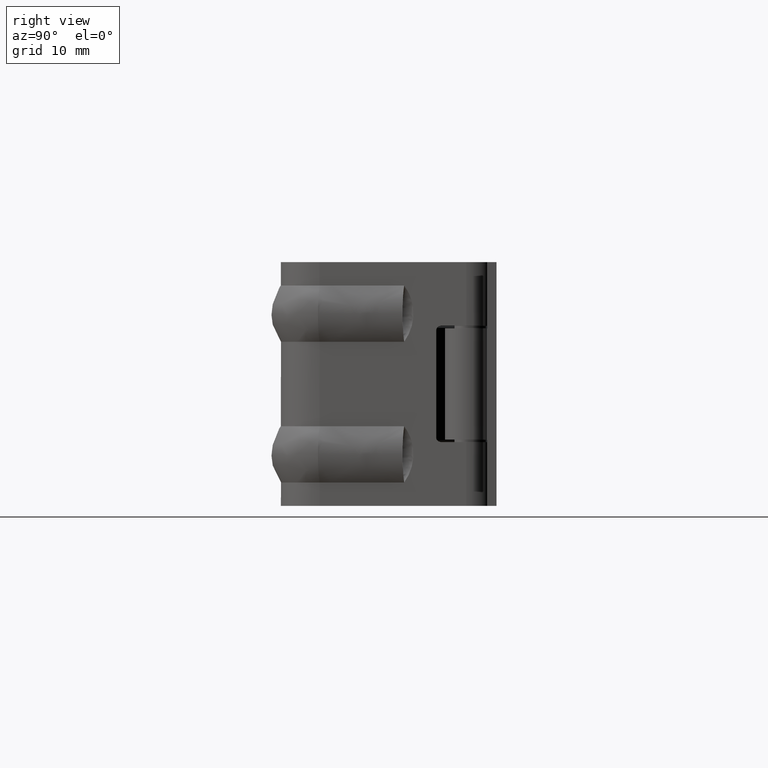
[diagram: clean part render]
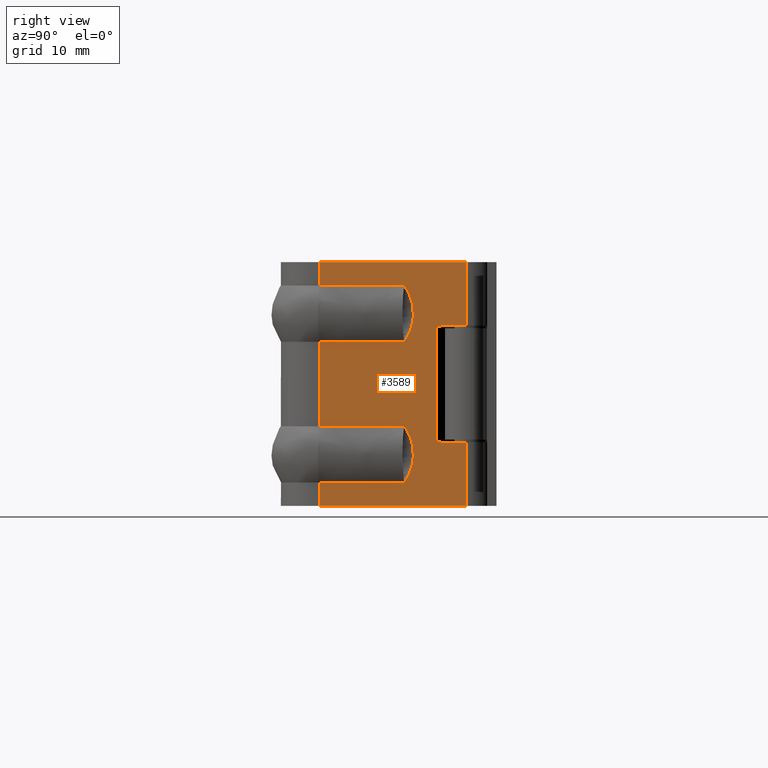
[diagram: same view with one face highlighted and labeled with its STEP entity id]
A machine part, right view. The second image highlights one B-rep face of the part: STEP entity #3589.
In plain terms, the highlighted face is a freeform B-spline surface patch.
Its self-contained STEP definition (entity closure, byte-faithful):
#1335=CARTESIAN_POINT('',(0.174227150692116,-14.848472433970739,2.500000000000000));
#1336=VERTEX_POINT('',#1335);
#1337=CARTESIAN_POINT('',(1.540977907672725,-7.097273818486330,2.500034154519426));
#1338=VERTEX_POINT('',#1337);
#1339=CARTESIAN_POINT('',(0.174227150692116,-14.848472433970739,2.500000000000000));
#1340=CARTESIAN_POINT('',(1.540977907672725,-7.097273818486330,2.500034154519426));
#1341=QUASI_UNIFORM_CURVE('',1,(#1339,#1340),.UNSPECIFIED.,.F.,.U.);
#1342=EDGE_CURVE('',#1336,#1338,#1341,.T.);
#1344=CARTESIAN_POINT('',(1.540976835112095,-7.097279901256290,8.499989324198040));
#1345=VERTEX_POINT('',#1344);
#1359=CARTESIAN_POINT('',(0.174227150692119,-14.848472433970739,8.500014578826949));
#1360=VERTEX_POINT('',#1359);
#1361=CARTESIAN_POINT('',(0.174227150692119,-14.848472433970739,8.500014578826949));
#1362=CARTESIAN_POINT('',(1.540976835112095,-7.097279901256290,8.499989324198040));
#1363=QUASI_UNIFORM_CURVE('',1,(#1361,#1362),.UNSPECIFIED.,.F.,.U.);
#1364=EDGE_CURVE('',#1360,#1345,#1363,.T.);
#1366=CARTESIAN_POINT('',(-0.049667633944439,-16.118243081507501,8.500015772954459));
#1367=VERTEX_POINT('',#1366);
#1368=CARTESIAN_POINT('',(-0.049667633944439,-16.118243081507501,8.500015772954459));
#1369=CARTESIAN_POINT('',(0.174227150692119,-14.848472433970739,8.500014578826949));
#1370=QUASI_UNIFORM_CURVE('',1,(#1368,#1369),.UNSPECIFIED.,.F.,.U.);
#1371=EDGE_CURVE('',#1367,#1360,#1370,.T.);
#1373=CARTESIAN_POINT('',(-0.049667633944439,-16.118243081507501,2.499998805872490));
#1374=VERTEX_POINT('',#1373);
#1388=CARTESIAN_POINT('',(-0.049667633944439,-16.118243081507501,2.499998805872490));
#1389=CARTESIAN_POINT('',(0.174227150692116,-14.848472433970739,2.500000000000000));
#1390=QUASI_UNIFORM_CURVE('',1,(#1388,#1389),.UNSPECIFIED.,.F.,.U.);
#1391=EDGE_CURVE('',#1374,#1336,#1390,.T.);
#1567=CARTESIAN_POINT('',(1.540976835112095,-7.097279901256290,8.499989324198040));
#1568=CARTESIAN_POINT('',(1.541104519954327,-7.096555767344338,8.499223606627540));
#1569=CARTESIAN_POINT('',(1.541197163666038,-7.096030360787016,8.498302135953253));
#1570=CARTESIAN_POINT('',(1.541416923683878,-7.094784044633674,8.496612544743885));
#1571=CARTESIAN_POINT('',(1.541746421973176,-7.092915374233625,8.494077546883453));
#1572=CARTESIAN_POINT('',(1.542514272739775,-7.088560693053781,8.488158344895854));
#1573=CARTESIAN_POINT('',(1.544046064897948,-7.079873501775491,8.476303155623018));
#1574=CARTESIAN_POINT('',(1.547093943457237,-7.062588190647425,8.452526216187028));
#1575=CARTESIAN_POINT('',(1.553126770896157,-7.028374458953347,8.404706839537072));
#1576=CARTESIAN_POINT('',(1.558188042726782,-6.999670671517518,8.363278909654291));
#1577=CARTESIAN_POINT('',(1.568164452866489,-6.943091857811038,8.279835660994122));
#1578=CARTESIAN_POINT('',(1.574620609633781,-6.906477315517654,8.223419322643034));
#1579=CARTESIAN_POINT('',(1.593352867861125,-6.800241812595774,8.052297574513068));
#1580=CARTESIAN_POINT('',(1.605012674209842,-6.734116021652993,7.935569344279907));
#1581=CARTESIAN_POINT('',(1.621264487495504,-6.641947766398303,7.756521268791171));
#1582=CARTESIAN_POINT('',(1.626475190206228,-6.612396517620290,7.696178482230212));
#1583=CARTESIAN_POINT('',(1.636481187032300,-6.555649910129010,7.574165459964276));
#1584=CARTESIAN_POINT('',(1.641279126491847,-6.528439548981547,7.512447217993747));
#1585=CARTESIAN_POINT('',(1.654956455308775,-6.450871863982780,7.326533520274214));
#1586=CARTESIAN_POINT('',(1.663153967400401,-6.404381643252697,7.201195432233160));
#1587=CARTESIAN_POINT('',(1.685052528725165,-6.280189212881123,6.821097596865839));
#1588=CARTESIAN_POINT('',(1.696076511470932,-6.217669342773361,6.562279908419495));
#1589=CARTESIAN_POINT('',(1.705350815379149,-6.165072355908134,6.231928022803376));
#1590=CARTESIAN_POINT('',(1.706979039316781,-6.155838274956206,6.165514105849154));
#1591=CARTESIAN_POINT('',(1.709775721599333,-6.139977563172617,6.031989351743524));
#1592=CARTESIAN_POINT('',(1.710946005635214,-6.133340578373218,5.964730105581451));
#1593=CARTESIAN_POINT('',(1.713738724211858,-6.117502345795589,5.763077127791371));
#1594=CARTESIAN_POINT('',(1.714645710796999,-6.112358589242239,5.629072827696429));
#1595=CARTESIAN_POINT('',(1.714582783412435,-6.112715466788215,5.228316603414950));
#1596=CARTESIAN_POINT('',(1.710846286100985,-6.133906113758306,4.962813544114798));
#1597=CARTESIAN_POINT('',(1.699692586685935,-6.197161640797080,4.567063811249227));
#1598=CARTESIAN_POINT('',(1.695045541944868,-6.223516238794623,4.435566659446751));
#1599=CARTESIAN_POINT('',(1.683836808205979,-6.287083879781445,4.173436646443900));
#1600=CARTESIAN_POINT('',(1.677329399787134,-6.323989083505620,4.044152052220703));
#1601=CARTESIAN_POINT('',(1.655269761064374,-6.449095025648055,3.663477294721993));
#1602=CARTESIAN_POINT('',(1.637158817279614,-6.551806892952716,3.418346153945805));
#1603=CARTESIAN_POINT('',(1.604918683734011,-6.734649066059538,3.063543474804674));
#1604=CARTESIAN_POINT('',(1.593322365789011,-6.800414797770984,2.947435053043625));
#1605=CARTESIAN_POINT('',(1.574620110062986,-6.906480148713428,2.776595928384451));
#1606=CARTESIAN_POINT('',(1.568159733413677,-6.943118623054027,2.720140947526091));
#1607=CARTESIAN_POINT('',(1.558185111604350,-6.999687294674327,2.636713913796180));
#1608=CARTESIAN_POINT('',(1.553124990113306,-7.028384558235542,2.595295890667444));
#1609=CARTESIAN_POINT('',(1.547094101151415,-7.062587296322788,2.547491958902897));
#1610=CARTESIAN_POINT('',(1.544046786025102,-7.079869412076071,2.523719336520567));
#1611=CARTESIAN_POINT('',(1.542515157966488,-7.088555672703127,2.511865372706330));
#1612=CARTESIAN_POINT('',(1.541857037275449,-7.092288046117344,2.506792036932456));
#1613=CARTESIAN_POINT('',(1.541417909691253,-7.094778452729702,2.503411357125319));
#1614=CARTESIAN_POINT('',(1.541215390413569,-7.095926992166588,2.501651772345378));
#1615=CARTESIAN_POINT('',(1.540977907672725,-7.097273818486330,2.500034154519426));
#1616=B_SPLINE_CURVE_WITH_KNOTS('',3,(#1567,#1568,#1569,#1570,#1571,#1572,#1573,#1574,#1575,#1576,#1577,#1578,#1579,#1580,#1581,#1582,#1583,#1584,#1585,#1586,#1587,#1588,#1589,#1590,#1591,#1592,#1593,#1594,#1595,#1596,#1597,#1598,#1599,#1600,#1601,#1602,#1603,#1604,#1605,#1606,#1607,#1608,#1609,#1610,#1611,#1612,#1613,#1614,#1615),.UNSPECIFIED.,.F.,.U.,(4,2,1,1,1,1,1,2,2,2,2,2,2,2,2,2,2,2,2,2,2,2,2,1,1,1,1,2,4),(0.0,0.000488281250000,0.000976562499999,0.001953125000000,0.003906250000000,0.007812500000000,0.015625000000000,0.031249999999999,0.062500000000000,0.125000000000000,0.156250000000000,0.187500000000000,0.249999999999999,0.374999999999999,0.406249999999999,0.437499999999999,0.499999999999999,0.624999999999999,0.687499999999999,0.749999999999999,0.874999999999999,0.937499999999999,0.968750000000000,0.984375000000000,0.992187500000000,0.996093750000000,0.998046875000000,0.999023437500000,1.0),.UNSPECIFIED.);
#1617=EDGE_CURVE('',#1345,#1338,#1616,.T.);
#2217=CARTESIAN_POINT('',(0.174227150692116,-14.848472433970739,17.499985421173150));
#2218=VERTEX_POINT('',#2217);
#2219=CARTESIAN_POINT('',(1.540977907672725,-7.097273818486330,17.500019575692601));
#2220=VERTEX_POINT('',#2219);
#2221=CARTESIAN_POINT('',(0.174227150692116,-14.848472433970739,17.499985421173150));
#2222=CARTESIAN_POINT('',(1.540977907672725,-7.097273818486330,17.500019575692601));
#2223=QUASI_UNIFORM_CURVE('',1,(#2221,#2222),.UNSPECIFIED.,.F.,.U.);
#2224=EDGE_CURVE('',#2218,#2220,#2223,.T.);
#2226=CARTESIAN_POINT('',(1.540976820420780,-7.097279897441750,23.499974740849652));
#2227=VERTEX_POINT('',#2226);
#2241=CARTESIAN_POINT('',(0.174227150692119,-14.848472433970739,23.500000000000000));
#2242=VERTEX_POINT('',#2241);
#2243=CARTESIAN_POINT('',(0.174227150692119,-14.848472433970739,23.500000000000000));
#2244=CARTESIAN_POINT('',(1.540976820420780,-7.097279897441750,23.499974740849652));
#2245=QUASI_UNIFORM_CURVE('',1,(#2243,#2244),.UNSPECIFIED.,.F.,.U.);
#2246=EDGE_CURVE('',#2242,#2227,#2245,.T.);
#2248=CARTESIAN_POINT('',(-0.049667633944439,-16.118243081507501,23.500001194127751));
#2249=VERTEX_POINT('',#2248);
#2250=CARTESIAN_POINT('',(-0.049667633944439,-16.118243081507501,23.500001194127751));
#2251=CARTESIAN_POINT('',(0.174227150692119,-14.848472433970739,23.500000000000000));
#2252=QUASI_UNIFORM_CURVE('',1,(#2250,#2251),.UNSPECIFIED.,.F.,.U.);
#2253=EDGE_CURVE('',#2249,#2242,#2252,.T.);
#2255=CARTESIAN_POINT('',(-0.049667633944439,-16.118243081507501,17.499984227045800));
#2256=VERTEX_POINT('',#2255);
#2270=CARTESIAN_POINT('',(-0.049667633944439,-16.118243081507501,17.499984227045800));
#2271=CARTESIAN_POINT('',(0.174227150692116,-14.848472433970739,17.499985421173150));
#2272=QUASI_UNIFORM_CURVE('',1,(#2270,#2271),.UNSPECIFIED.,.F.,.U.);
#2273=EDGE_CURVE('',#2256,#2218,#2272,.T.);
#2449=CARTESIAN_POINT('',(1.540976820420780,-7.097279897441750,23.499974740849652));
#2450=CARTESIAN_POINT('',(1.541104498665494,-7.096555800957152,23.499208993760849));
#2451=CARTESIAN_POINT('',(1.541197148865167,-7.096030357618292,23.498287553037279));
#2452=CARTESIAN_POINT('',(1.541416908886904,-7.094784041467377,23.496597961828130));
#2453=CARTESIAN_POINT('',(1.541746407182060,-7.092915371070924,23.494062963968052));
#2454=CARTESIAN_POINT('',(1.542514257962338,-7.088560689899457,23.488143761981298));
#2455=CARTESIAN_POINT('',(1.544046050147917,-7.079873498637903,23.476288572710239));
#2456=CARTESIAN_POINT('',(1.547093928762197,-7.062588187543264,23.452511633277940));
#2457=CARTESIAN_POINT('',(1.553126756311816,-7.028374455915838,23.404692256636100));
#2458=CARTESIAN_POINT('',(1.558188028238523,-6.999670668536729,23.363264326761382));
#2459=CARTESIAN_POINT('',(1.568164438571993,-6.943091854943144,23.279821078118839));
#2460=CARTESIAN_POINT('',(1.574620595470599,-6.906477312724334,23.223404739781550));
#2461=CARTESIAN_POINT('',(1.593352854097207,-6.800241810023203,23.052282991698579));
#2462=CARTESIAN_POINT('',(1.605012660719527,-6.734116019223911,22.935554761504271));
#2463=CARTESIAN_POINT('',(1.621264474426697,-6.641947764178913,22.756506686085061));
#2464=CARTESIAN_POINT('',(1.626475177279778,-6.612396515469877,22.696163899549180));
#2465=CARTESIAN_POINT('',(1.636481174394296,-6.555649908114651,22.574150877337178));
#2466=CARTESIAN_POINT('',(1.641279114000136,-6.528439547033802,22.512432635394429));
#2467=CARTESIAN_POINT('',(1.654956443258736,-6.450871862230078,22.326518937761360));
#2468=CARTESIAN_POINT('',(1.663153955649308,-6.404381641624800,22.201180849784070));
#2469=CARTESIAN_POINT('',(1.685052517884106,-6.280189211612059,21.821083014626009));
#2470=CARTESIAN_POINT('',(1.696076501254059,-6.217669341722989,21.562265326342970));
#2471=CARTESIAN_POINT('',(1.705350805965055,-6.165072355102449,21.231913440961751));
#2472=CARTESIAN_POINT('',(1.706979030064378,-6.155838274198005,21.165499524056059));
#2473=CARTESIAN_POINT('',(1.709775712672638,-6.139977562506323,21.031974770050649));
#2474=CARTESIAN_POINT('',(1.710945996872893,-6.133340577751477,20.964715523941901));
#2475=CARTESIAN_POINT('',(1.713738715943614,-6.117502345300252,20.763062546289099));
#2476=CARTESIAN_POINT('',(1.714645702858190,-6.112358588824630,20.629058246289510));
#2477=CARTESIAN_POINT('',(1.714582776462268,-6.112715466583644,20.228302022305130));
#2478=CARTESIAN_POINT('',(1.710846279810331,-6.133906113669165,19.962798963217718));
#2479=CARTESIAN_POINT('',(1.699692581386315,-6.197161640834707,19.567049230692842));
#2480=CARTESIAN_POINT('',(1.695045536975891,-6.223516238866712,19.435552079007518));
#2481=CARTESIAN_POINT('',(1.683836803899188,-6.287083879904830,19.173422066246331));
#2482=CARTESIAN_POINT('',(1.677329395806321,-6.323989083657804,19.044137472102939));
#2483=CARTESIAN_POINT('',(1.655269758049430,-6.449095025850790,18.663462714903769));
#2484=CARTESIAN_POINT('',(1.637158814891619,-6.551806893159720,18.418331574332079));
#2485=CARTESIAN_POINT('',(1.604918682262672,-6.734649066220467,18.063528895500980));
#2486=CARTESIAN_POINT('',(1.593322364619247,-6.800414797907749,17.947420473843799));
#2487=CARTESIAN_POINT('',(1.574620109339719,-6.906480148798965,17.776581349340649));
#2488=CARTESIAN_POINT('',(1.568159732838094,-6.943118623121868,17.720126368531218));
#2489=CARTESIAN_POINT('',(1.558185111246605,-6.999687294718299,17.636699334865671));
#2490=CARTESIAN_POINT('',(1.553124989863840,-7.028384558266914,17.595281311768879));
#2491=CARTESIAN_POINT('',(1.547094101027161,-7.062587296338270,17.547477380041158));
#2492=CARTESIAN_POINT('',(1.544046785963175,-7.079869412083307,17.523704757677120));
#2493=CARTESIAN_POINT('',(1.542515157935656,-7.088555672706167,17.511850793872011));
#2494=CARTESIAN_POINT('',(1.541857037257927,-7.092288046118566,17.506777458102039));
#2495=CARTESIAN_POINT('',(1.541417909682603,-7.094778452729716,17.503396778297510));
#2496=CARTESIAN_POINT('',(1.541215390409300,-7.095926992167303,17.501637193517279));
#2497=CARTESIAN_POINT('',(1.540977907672725,-7.097273818486330,17.500019575692601));
#2498=B_SPLINE_CURVE_WITH_KNOTS('',3,(#2449,#2450,#2451,#2452,#2453,#2454,#2455,#2456,#2457,#2458,#2459,#2460,#2461,#2462,#2463,#2464,#2465,#2466,#2467,#2468,#2469,#2470,#2471,#2472,#2473,#2474,#2475,#2476,#2477,#2478,#2479,#2480,#2481,#2482,#2483,#2484,#2485,#2486,#2487,#2488,#2489,#2490,#2491,#2492,#2493,#2494,#2495,#2496,#2497),.UNSPECIFIED.,.F.,.U.,(4,2,1,1,1,1,1,2,2,2,2,2,2,2,2,2,2,2,2,2,2,2,2,1,1,1,1,2,4),(0.0,0.000488281250000,0.000976562499999,0.001953124999999,0.003906250000000,0.007812500000001,0.015625000000001,0.031250000000002,0.062500000000003,0.125000000000006,0.156250000000008,0.187500000000009,0.250000000000011,0.375000000000014,0.406250000000013,0.437500000000013,0.500000000000012,0.625000000000009,0.687500000000007,0.750000000000005,0.875000000000003,0.937500000000002,0.968750000000001,0.984375000000000,0.992187500000000,0.996093750000000,0.998046875000001,0.999023437500000,1.0),.UNSPECIFIED.);
#2499=EDGE_CURVE('',#2227,#2220,#2498,.T.);
#2537=CARTESIAN_POINT('',(2.143861912835665,-3.678162000000000,7.299988000000210));
#2538=VERTEX_POINT('',#2537);
#2544=CARTESIAN_POINT('',(2.232031213300585,-3.178130991273440,6.799988000000240));
#2545=VERTEX_POINT('',#2544);
#2546=CARTESIAN_POINT('',(2.143861912835665,-3.678162000000000,7.299988000000210));
#2547=CARTESIAN_POINT('',(2.143861912835690,-3.678161999999985,7.092872136392950));
#2548=CARTESIAN_POINT('',(2.169686434740437,-3.531704427241195,6.946423645996550));
#2549=CARTESIAN_POINT('',(2.195510956645183,-3.385246854482404,6.799975155600150));
#2550=CARTESIAN_POINT('',(2.232031213300585,-3.178130991273440,6.799988000000240));
#2558=(BOUNDED_CURVE()B_SPLINE_CURVE(2,(#2546,#2547,#2548,#2549,#2550),.UNSPECIFIED.,.F.,.U.)B_SPLINE_CURVE_WITH_KNOTS((3,2,3),(0.0,0.500000000000000,1.0),.UNSPECIFIED.)CURVE()GEOMETRIC_REPRESENTATION_ITEM()RATIONAL_B_SPLINE_CURVE((1.0,0.923873599321270,1.0,0.923873599321270,1.0))REPRESENTATION_ITEM(''));
#2559=EDGE_CURVE('',#2538,#2545,#2558,.T.);
#2581=CARTESIAN_POINT('',(2.143861912835775,-3.678162000000000,18.699997000000099));
#2582=VERTEX_POINT('',#2581);
#2588=CARTESIAN_POINT('',(2.143861912835775,-3.678162000000000,18.699997000000099));
#2589=CARTESIAN_POINT('',(2.143861912835665,-3.678162000000000,7.299988000000210));
#2590=QUASI_UNIFORM_CURVE('',1,(#2588,#2589),.UNSPECIFIED.,.F.,.U.);
#2591=EDGE_CURVE('',#2582,#2538,#2590,.T.);
#2628=CARTESIAN_POINT('',(2.232031211761825,-3.178131000000090,19.199997000000099));
#2629=VERTEX_POINT('',#2628);
#2635=CARTESIAN_POINT('',(2.232031211761825,-3.178131000000090,19.199997000000099));
#2636=CARTESIAN_POINT('',(2.195510959865116,-3.385246836221612,19.200009855097143));
#2637=CARTESIAN_POINT('',(2.169686436350429,-3.531704418110798,19.053561363134261));
#2638=CARTESIAN_POINT('',(2.143861912835741,-3.678161999999984,18.907112871171361));
#2639=CARTESIAN_POINT('',(2.143861912835741,-3.678161999999984,18.699997000000099));
#2647=(BOUNDED_CURVE()B_SPLINE_CURVE(2,(#2635,#2636,#2637,#2638,#2639),.UNSPECIFIED.,.F.,.U.)B_SPLINE_CURVE_WITH_KNOTS((3,2,3),(0.0,0.500000000000000,1.0),.UNSPECIFIED.)CURVE()GEOMETRIC_REPRESENTATION_ITEM()RATIONAL_B_SPLINE_CURVE((1.0,0.923873594380159,1.0,0.923873594380159,1.0))REPRESENTATION_ITEM(''));
#2648=EDGE_CURVE('',#2629,#2582,#2647,.T.);
#2694=CARTESIAN_POINT('',(2.708220999999895,-0.477534999999989,19.199997000000099));
#2695=VERTEX_POINT('',#2694);
#2715=CARTESIAN_POINT('',(2.708220999999895,-0.477534999999989,19.199997000000099));
#2716=CARTESIAN_POINT('',(2.232031211761825,-3.178131000000090,19.199997000000099));
#2717=QUASI_UNIFORM_CURVE('',1,(#2715,#2716),.UNSPECIFIED.,.F.,.U.);
#2718=EDGE_CURVE('',#2695,#2629,#2717,.T.);
#2737=CARTESIAN_POINT('',(2.708220999999895,-0.477534999999991,6.799988000000260));
#2738=VERTEX_POINT('',#2737);
#2739=CARTESIAN_POINT('',(2.232031213300585,-3.178130991273440,6.799988000000240));
#2740=CARTESIAN_POINT('',(2.708220999999895,-0.477534999999991,6.799988000000260));
#2741=QUASI_UNIFORM_CURVE('',1,(#2739,#2740),.UNSPECIFIED.,.F.,.U.);
#2742=EDGE_CURVE('',#2545,#2738,#2741,.T.);
#2859=CARTESIAN_POINT('',(-0.049669894376328,-16.118250743499200,26.0));
#2860=VERTEX_POINT('',#2859);
#2876=CARTESIAN_POINT('',(2.708220999999895,-0.477534999999989,26.0));
#2877=VERTEX_POINT('',#2876);
#2878=CARTESIAN_POINT('',(-0.049669894376328,-16.118250743499200,26.0));
#2879=CARTESIAN_POINT('',(2.708220999999895,-0.477534999999989,26.0));
#2880=QUASI_UNIFORM_CURVE('',1,(#2878,#2879),.UNSPECIFIED.,.F.,.U.);
#2881=EDGE_CURVE('',#2860,#2877,#2880,.T.);
#3045=CARTESIAN_POINT('',(2.708220999999895,-0.477534999999989,0.0));
#3046=VERTEX_POINT('',#3045);
#3066=CARTESIAN_POINT('',(-0.049669894376328,-16.118250743499200,0.0));
#3067=VERTEX_POINT('',#3066);
#3068=CARTESIAN_POINT('',(-0.049669894376328,-16.118250743499200,0.0));
#3069=CARTESIAN_POINT('',(2.708220999999895,-0.477534999999989,0.0));
#3070=QUASI_UNIFORM_CURVE('',1,(#3068,#3069),.UNSPECIFIED.,.F.,.U.);
#3071=EDGE_CURVE('',#3067,#3046,#3070,.T.);
#3276=CARTESIAN_POINT('',(2.708220999999895,-0.477534999999989,19.199997000000099));
#3277=CARTESIAN_POINT('',(2.708220999999895,-0.477534999999989,26.0));
#3278=QUASI_UNIFORM_CURVE('',1,(#3276,#3277),.UNSPECIFIED.,.F.,.U.);
#3279=EDGE_CURVE('',#2695,#2877,#3278,.T.);
#3389=CARTESIAN_POINT('',(2.708220999999895,-0.477534999999989,0.0));
#3390=CARTESIAN_POINT('',(2.708220999999895,-0.477534999999991,6.799988000000260));
#3391=QUASI_UNIFORM_CURVE('',1,(#3389,#3390),.UNSPECIFIED.,.F.,.U.);
#3392=EDGE_CURVE('',#3046,#2738,#3391,.T.);
#3471=CARTESIAN_POINT('',(-0.049667633944439,-16.118243081507501,23.500001194127751));
#3472=CARTESIAN_POINT('',(-0.049669894376328,-16.118250743499200,26.0));
#3473=QUASI_UNIFORM_CURVE('',1,(#3471,#3472),.UNSPECIFIED.,.F.,.U.);
#3474=EDGE_CURVE('',#2249,#2860,#3473,.T.);
#3527=CARTESIAN_POINT('',(-0.049669894376328,-16.118250743499200,0.0));
#3528=CARTESIAN_POINT('',(-0.049667633944439,-16.118243081507501,2.499998805872490));
#3529=QUASI_UNIFORM_CURVE('',1,(#3527,#3528),.UNSPECIFIED.,.F.,.U.);
#3530=EDGE_CURVE('',#3067,#1374,#3529,.T.);
#3550=CARTESIAN_POINT('',(-0.049667633944439,-16.118243081507501,8.500015772954459));
#3551=CARTESIAN_POINT('',(-0.049667633944439,-16.118243081507501,17.499984227045800));
#3552=QUASI_UNIFORM_CURVE('',1,(#3550,#3551),.UNSPECIFIED.,.F.,.U.);
#3553=EDGE_CURVE('',#1367,#2256,#3552,.T.);
#3560=CARTESIAN_POINT('',(-0.187426383870454,-16.899503583629151,-1.298699949606955));
#3561=CARTESIAN_POINT('',(2.845977711411216,0.303719098680023,-1.298699949606955));
#3562=CARTESIAN_POINT('',(-0.187426383870454,-16.899503583629151,27.298700646981299));
#3563=CARTESIAN_POINT('',(2.845977711411216,0.303719098680023,27.298700646981299));
#3564=B_SPLINE_SURFACE_WITH_KNOTS('',1,1,((#3560,#3562),(#3561,#3563)),.UNSPECIFIED.,.F.,.F.,.U.,(2,2),(2,2),(0.0,17.468612167610470),(0.0,28.597400596588258),.UNSPECIFIED.);
#3565=ORIENTED_EDGE('',*,*,#1617,.T.);
#3566=ORIENTED_EDGE('',*,*,#1342,.F.);
#3567=ORIENTED_EDGE('',*,*,#1391,.F.);
#3568=ORIENTED_EDGE('',*,*,#3530,.F.);
#3569=ORIENTED_EDGE('',*,*,#3071,.T.);
#3570=ORIENTED_EDGE('',*,*,#3392,.T.);
#3571=ORIENTED_EDGE('',*,*,#2742,.F.);
#3572=ORIENTED_EDGE('',*,*,#2559,.F.);
#3573=ORIENTED_EDGE('',*,*,#2591,.F.);
#3574=ORIENTED_EDGE('',*,*,#2648,.F.);
#3575=ORIENTED_EDGE('',*,*,#2718,.F.);
#3576=ORIENTED_EDGE('',*,*,#3279,.T.);
#3577=ORIENTED_EDGE('',*,*,#2881,.F.);
#3578=ORIENTED_EDGE('',*,*,#3474,.F.);
#3579=ORIENTED_EDGE('',*,*,#2253,.T.);
#3580=ORIENTED_EDGE('',*,*,#2246,.T.);
#3581=ORIENTED_EDGE('',*,*,#2499,.T.);
#3582=ORIENTED_EDGE('',*,*,#2224,.F.);
#3583=ORIENTED_EDGE('',*,*,#2273,.F.);
#3584=ORIENTED_EDGE('',*,*,#3553,.F.);
#3585=ORIENTED_EDGE('',*,*,#1371,.T.);
#3586=ORIENTED_EDGE('',*,*,#1364,.T.);
#3587=EDGE_LOOP('',(#3565,#3566,#3567,#3568,#3569,#3570,#3571,#3572,#3573,#3574,#3575,#3576,#3577,#3578,#3579,#3580,#3581,#3582,#3583,#3584,#3585,#3586));
#3588=FACE_OUTER_BOUND('',#3587,.T.);
#3589=ADVANCED_FACE('',(#3588),#3564,.T.);